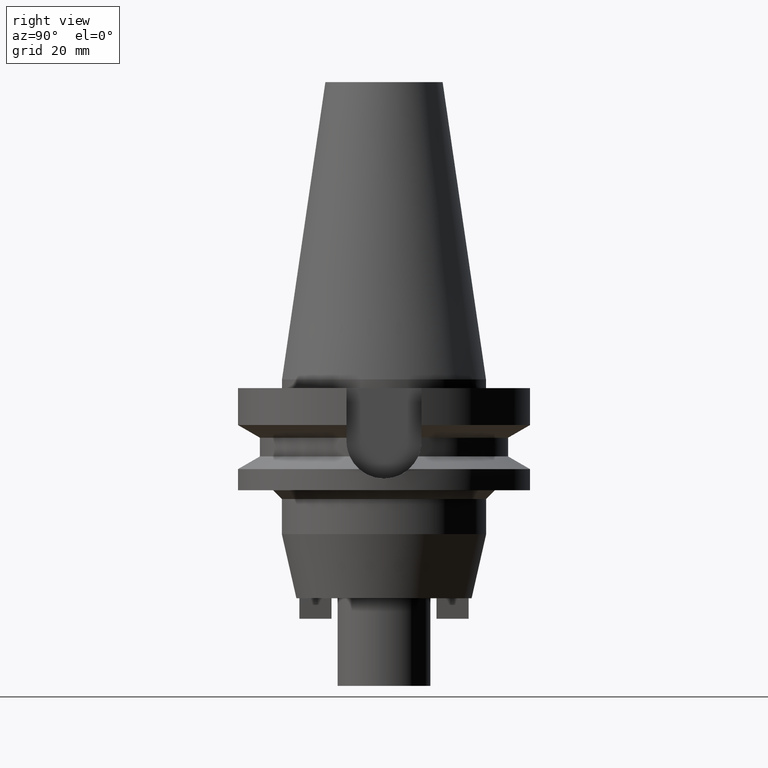
[diagram: clean part render]
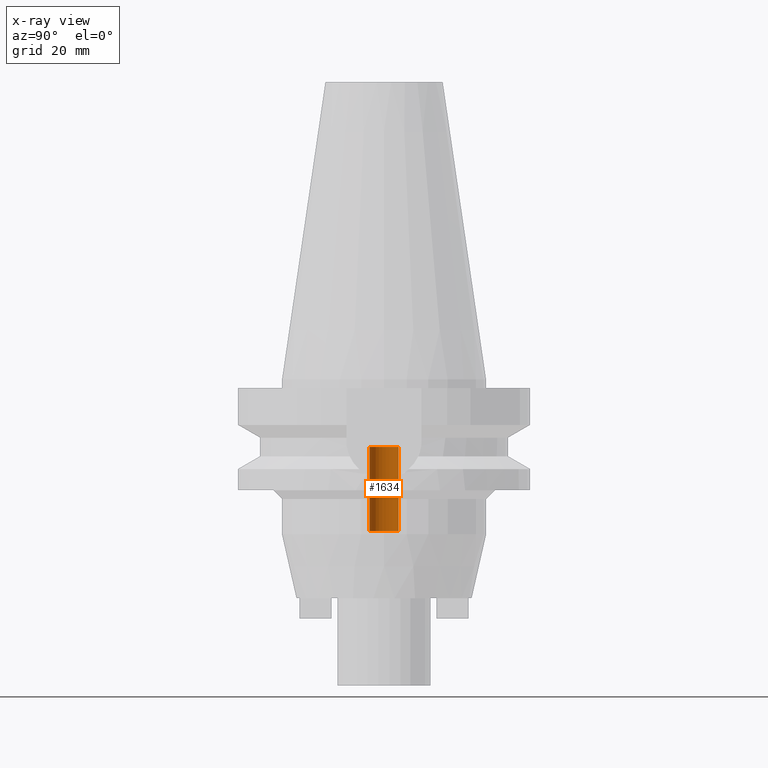
[diagram: x-ray — body ghosted, one internal face saturated and labeled with its STEP entity id]
A machine part, right view, then the same camera in x-ray: the body is ghosted and one INTERNAL B-rep face — a face not visible from any outside direction — is saturated and labeled: STEP entity #1634.
In plain terms, the highlighted cylindrical surface (edge-blend (fillet) strip) has radius 5 mm, axis along (0, 0, -1).
Its self-contained STEP definition (entity closure, byte-faithful):
#132=CARTESIAN_POINT('',(0.E0,1.373318920564E-14,-2.32E1));
#133=DIRECTION('',(0.E0,0.E0,1.E0));
#134=DIRECTION('',(0.E0,1.E0,0.E0));
#135=AXIS2_PLACEMENT_3D('',#132,#133,#134);
#140=DIRECTION('',(0.E0,0.E0,1.E0));
#141=VECTOR('',#140,2.88E1);
#142=CARTESIAN_POINT('',(0.E0,5.E0,-5.2E1));
#143=LINE('',#142,#141);
#147=DIRECTION('',(0.E0,0.E0,1.E0));
#148=VECTOR('',#147,2.88E1);
#149=CARTESIAN_POINT('',(0.E0,-5.E0,-5.2E1));
#150=LINE('',#149,#148);
#170=CARTESIAN_POINT('',(0.E0,1.373318920564E-14,-5.2E1));
#171=DIRECTION('',(0.E0,0.E0,-1.E0));
#172=DIRECTION('',(0.E0,-1.E0,0.E0));
#173=AXIS2_PLACEMENT_3D('',#170,#171,#172);
#1304=CARTESIAN_POINT('',(0.E0,-5.E0,-2.32E1));
#1305=CARTESIAN_POINT('',(0.E0,5.E0,-2.32E1));
#1306=VERTEX_POINT('',#1304);
#1307=VERTEX_POINT('',#1305);
#1308=CARTESIAN_POINT('',(0.E0,5.E0,-5.2E1));
#1309=VERTEX_POINT('',#1308);
#1310=CARTESIAN_POINT('',(0.E0,-5.E0,-5.2E1));
#1311=VERTEX_POINT('',#1310);
#1622=CARTESIAN_POINT('',(0.E0,1.373318920564E-14,1.1214E2));
#1623=DIRECTION('',(0.E0,0.E0,-1.E0));
#1624=DIRECTION('',(0.E0,-1.E0,0.E0));
#1625=AXIS2_PLACEMENT_3D('',#1622,#1623,#1624);
#1626=CYLINDRICAL_SURFACE('',#1625,5.E0);
#1627=ORIENTED_EDGE('',*,*,#1612,.F.);
#1629=ORIENTED_EDGE('',*,*,#1628,.F.);
#1630=ORIENTED_EDGE('',*,*,#1615,.T.);
#1631=ORIENTED_EDGE('',*,*,#1602,.F.);
#1632=EDGE_LOOP('',(#1627,#1629,#1630,#1631));
#1633=FACE_OUTER_BOUND('',#1632,.F.);
#136=CIRCLE('',#135,5.E0);
#174=CIRCLE('',#173,5.E0);
#1602=EDGE_CURVE('',#1307,#1306,#136,.T.);
#1612=EDGE_CURVE('',#1309,#1307,#143,.T.);
#1615=EDGE_CURVE('',#1311,#1306,#150,.T.);
#1628=EDGE_CURVE('',#1311,#1309,#174,.T.);
#1634=ADVANCED_FACE('',(#1633),#1626,.F.);